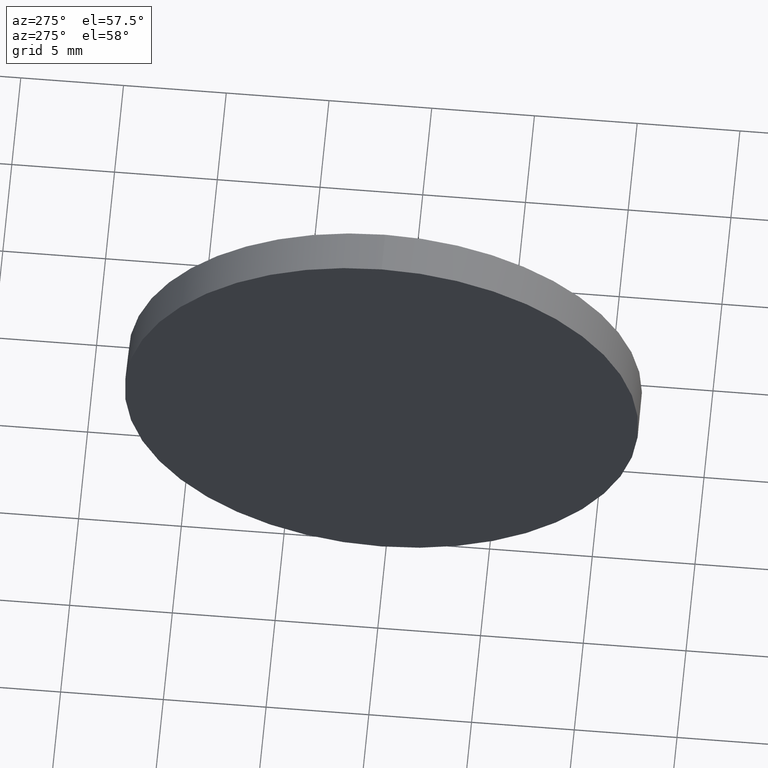
[diagram: clean part render]
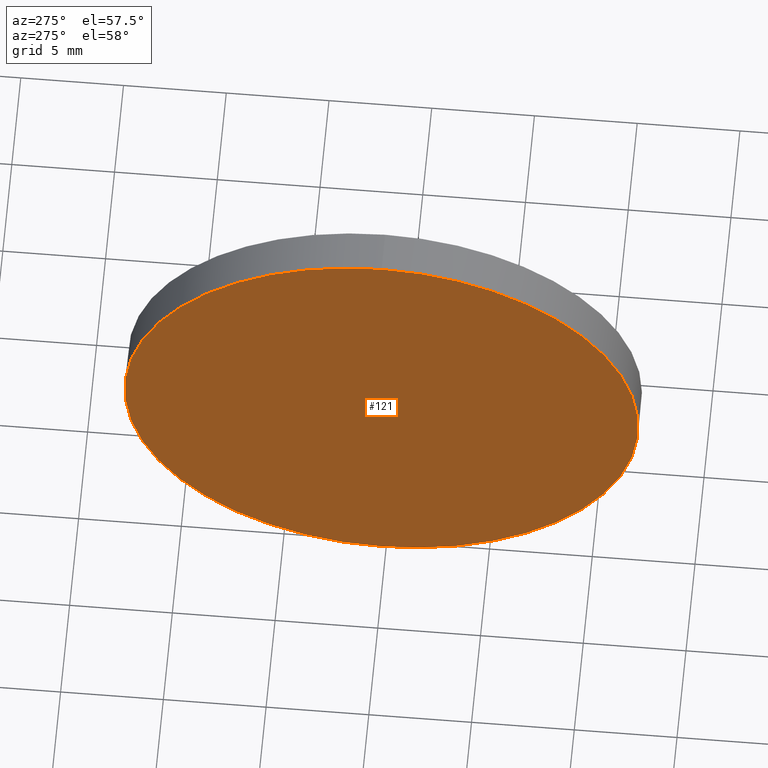
[diagram: same view with one face highlighted and labeled with its STEP entity id]
A machine part, auxiliary view. The second image highlights one B-rep face of the part: STEP entity #121.
In plain terms, the highlighted planar face has unit normal (1, 0, 0).
Its self-contained STEP definition (entity closure, byte-faithful):
#2 = CARTESIAN_POINT ( 'NONE',  ( 409.3519367756050500, 90.20022924379941300, 0.0000000000000000000 ) ) ;
#11 = VERTEX_POINT ( 'NONE', #124 ) ;
#13 = DIRECTION ( 'NONE',  ( -1.000000000000000000, -0.0000000000000000000, -0.0000000000000000000 ) ) ;
#14 = ORIENTED_EDGE ( 'NONE', *, *, #138, .T. ) ;
#18 = ORIENTED_EDGE ( 'NONE', *, *, #77, .T. ) ;
#32 = DIRECTION ( 'NONE',  ( 0.0000000000000000000, 0.0000000000000000000, 1.000000000000000000 ) ) ;
#49 = CARTESIAN_POINT ( 'NONE',  ( 409.3519367756050500, 90.20022924379941300, 0.0000000000000000000 ) ) ;
#61 = PLANE ( 'NONE',  #123 ) ;
#77 = EDGE_CURVE ( 'NONE', #176, #11, #79, .T. ) ;
#79 = CIRCLE ( 'NONE', #104, 12.49999999999999600 ) ;
#85 = DIRECTION ( 'NONE',  ( 1.000000000000000000, 0.0000000000000000000, 0.0000000000000000000 ) ) ;
#91 = CARTESIAN_POINT ( 'NONE',  ( 409.3519367756050500, 90.20022924379941300, 12.49999999999999600 ) ) ;
#96 = EDGE_LOOP ( 'NONE', ( #18, #14 ) ) ;
#104 = AXIS2_PLACEMENT_3D ( 'NONE', #171, #13, #32 ) ;
#120 = CIRCLE ( 'NONE', #141, 12.49999999999999600 ) ;
#121 = ADVANCED_FACE ( 'NONE', ( #162 ), #61, .F. ) ;
#123 = AXIS2_PLACEMENT_3D ( 'NONE', #2, #85, #159 ) ;
#124 = CARTESIAN_POINT ( 'NONE',  ( 409.3519367756050500, 90.20022924379941300, -12.49999999999999600 ) ) ;
#131 = DIRECTION ( 'NONE',  ( -1.000000000000000000, -0.0000000000000000000, -0.0000000000000000000 ) ) ;
#138 = EDGE_CURVE ( 'NONE', #11, #176, #120, .T. ) ;
#141 = AXIS2_PLACEMENT_3D ( 'NONE', #49, #131, #177 ) ;
#159 = DIRECTION ( 'NONE',  ( 0.0000000000000000000, 0.0000000000000000000, -1.000000000000000000 ) ) ;
#162 = FACE_OUTER_BOUND ( 'NONE', #96, .T. ) ;
#171 = CARTESIAN_POINT ( 'NONE',  ( 409.3519367756050500, 90.20022924379941300, 0.0000000000000000000 ) ) ;
#176 = VERTEX_POINT ( 'NONE', #91 ) ;
#177 = DIRECTION ( 'NONE',  ( 0.0000000000000000000, 0.0000000000000000000, 1.000000000000000000 ) ) ;